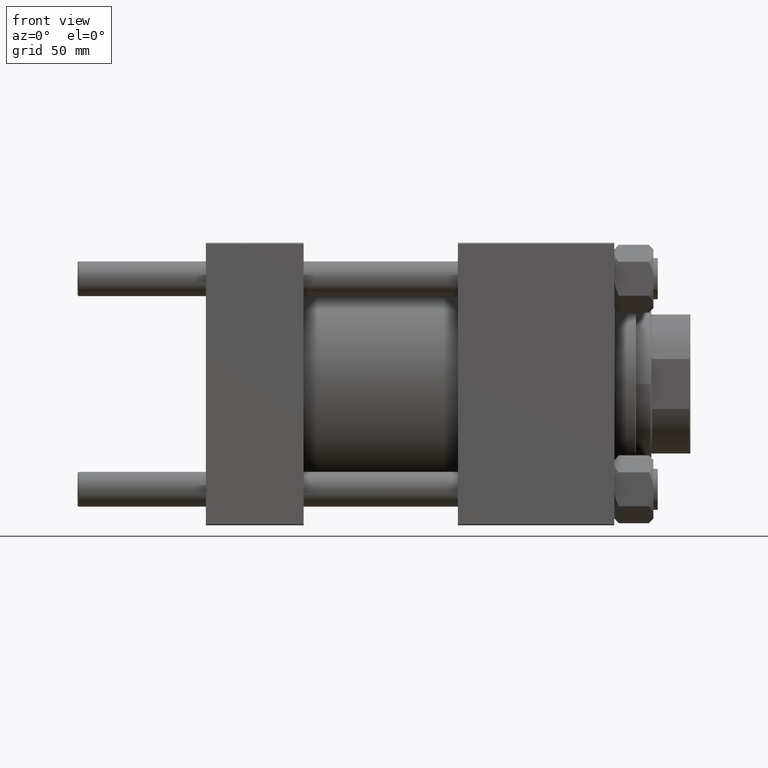
[diagram: clean part render]
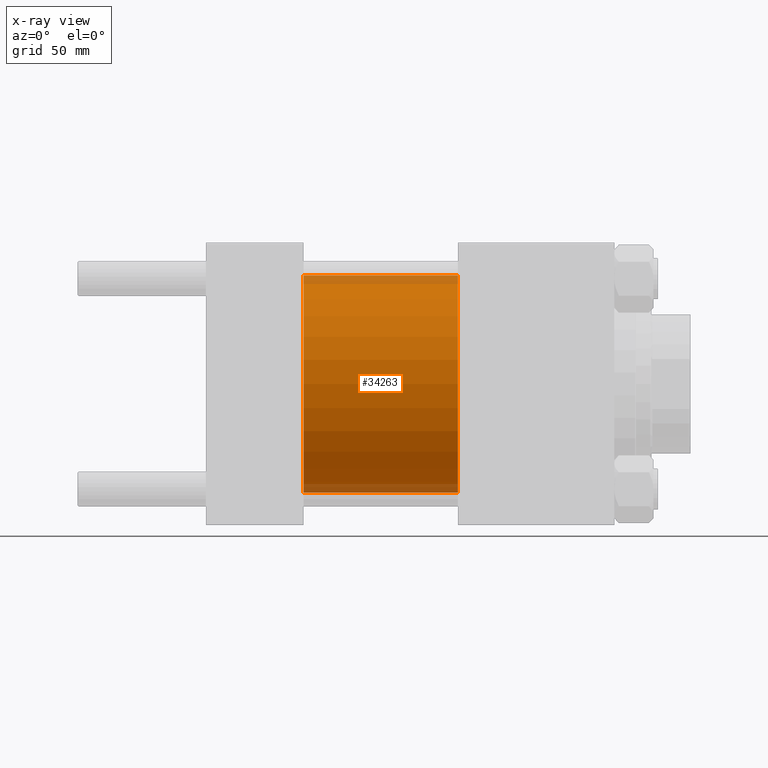
[diagram: x-ray — body ghosted, one internal face saturated and labeled with its STEP entity id]
A machine part, front view, then the same camera in x-ray: the body is ghosted and one INTERNAL B-rep face — a face not visible from any outside direction — is saturated and labeled: STEP entity #34263.
In plain terms, the highlighted cylindrical surface (partial cylindrical patch) has radius 50 mm, axis along (-1, -0, -0).
Its self-contained STEP definition (entity closure, byte-faithful):
#966 = CYLINDRICAL_SURFACE ( 'NONE', #15871, 50.00000000000000000 ) ;
#2619 = AXIS2_PLACEMENT_3D ( 'NONE', #6977, #21961, #48937 ) ;
#3225 = VERTEX_POINT ( 'NONE', #36523 ) ;
#3975 = CARTESIAN_POINT ( 'NONE',  ( 45.00000000000000000, 0.000000000000000000, 50.00000000000000000 ) ) ;
#4402 = LINE ( 'NONE', #19881, #33657 ) ;
#4633 = CARTESIAN_POINT ( 'NONE',  ( 115.9999999999999858, 0.000000000000000000, 50.00000000000000000 ) ) ;
#5820 = CIRCLE ( 'NONE', #2619, 50.00000000000000000 ) ;
#6977 = CARTESIAN_POINT ( 'NONE',  ( 45.00000000000000000, 0.000000000000000000, 0.000000000000000000 ) ) ;
#7242 = VERTEX_POINT ( 'NONE', #19852 ) ;
#7759 = VERTEX_POINT ( 'NONE', #22206 ) ;
#8088 = CARTESIAN_POINT ( 'NONE',  ( 115.9999999999999858, 0.000000000000000000, 0.000000000000000000 ) ) ;
#8441 = LINE ( 'NONE', #4633, #24684 ) ;
#9467 = EDGE_LOOP ( 'NONE', ( #47654, #46895, #49942, #25772 ) ) ;
#10048 = DIRECTION ( 'NONE',  ( 0.000000000000000000, 0.000000000000000000, -1.000000000000000000 ) ) ;
#11639 = DIRECTION ( 'NONE',  ( -1.000000000000000000, -0.000000000000000000, -0.000000000000000000 ) ) ;
#14096 = DIRECTION ( 'NONE',  ( 1.000000000000000000, 0.000000000000000000, 0.000000000000000000 ) ) ;
#14120 = AXIS2_PLACEMENT_3D ( 'NONE', #32930, #14096, #10048 ) ;
#15871 = AXIS2_PLACEMENT_3D ( 'NONE', #8088, #11639, #34773 ) ;
#19852 = CARTESIAN_POINT ( 'NONE',  ( 115.9999999999999858, 6.123233995736766085E-15, -50.00000000000000000 ) ) ;
#19881 = CARTESIAN_POINT ( 'NONE',  ( 115.9999999999999858, 6.123233995736766085E-15, -50.00000000000000000 ) ) ;
#21293 = EDGE_CURVE ( 'NONE', #43689, #7759, #5820, .T. ) ;
#21961 = DIRECTION ( 'NONE',  ( 1.000000000000000000, 0.000000000000000000, 0.000000000000000000 ) ) ;
#22206 = CARTESIAN_POINT ( 'NONE',  ( 45.00000000000000000, 6.123233995736766085E-15, -50.00000000000000000 ) ) ;
#23927 = DIRECTION ( 'NONE',  ( -1.000000000000000000, -0.000000000000000000, -0.000000000000000000 ) ) ;
#23938 = DIRECTION ( 'NONE',  ( -1.000000000000000000, -0.000000000000000000, -0.000000000000000000 ) ) ;
#24684 = VECTOR ( 'NONE', #23927, 1000.000000000000000 ) ;
#25772 = ORIENTED_EDGE ( 'NONE', *, *, #30065, .F. ) ;
#30065 = EDGE_CURVE ( 'NONE', #3225, #43689, #8441, .T. ) ;
#30747 = EDGE_CURVE ( 'NONE', #3225, #7242, #41757, .T. ) ;
#31417 = EDGE_CURVE ( 'NONE', #7242, #7759, #4402, .T. ) ;
#32930 = CARTESIAN_POINT ( 'NONE',  ( 115.9999999999999858, 0.000000000000000000, 0.000000000000000000 ) ) ;
#33657 = VECTOR ( 'NONE', #23938, 1000.000000000000000 ) ;
#34263 = ADVANCED_FACE ( 'NONE', ( #42407 ), #966, .F. ) ;
#34773 = DIRECTION ( 'NONE',  ( 0.000000000000000000, 0.000000000000000000, 1.000000000000000000 ) ) ;
#36523 = CARTESIAN_POINT ( 'NONE',  ( 115.9999999999999858, 0.000000000000000000, 50.00000000000000000 ) ) ;
#41757 = CIRCLE ( 'NONE', #14120, 50.00000000000000000 ) ;
#42407 = FACE_OUTER_BOUND ( 'NONE', #9467, .T. ) ;
#43689 = VERTEX_POINT ( 'NONE', #3975 ) ;
#46895 = ORIENTED_EDGE ( 'NONE', *, *, #31417, .T. ) ;
#47654 = ORIENTED_EDGE ( 'NONE', *, *, #30747, .T. ) ;
#48937 = DIRECTION ( 'NONE',  ( 0.000000000000000000, 0.000000000000000000, -1.000000000000000000 ) ) ;
#49942 = ORIENTED_EDGE ( 'NONE', *, *, #21293, .F. ) ;